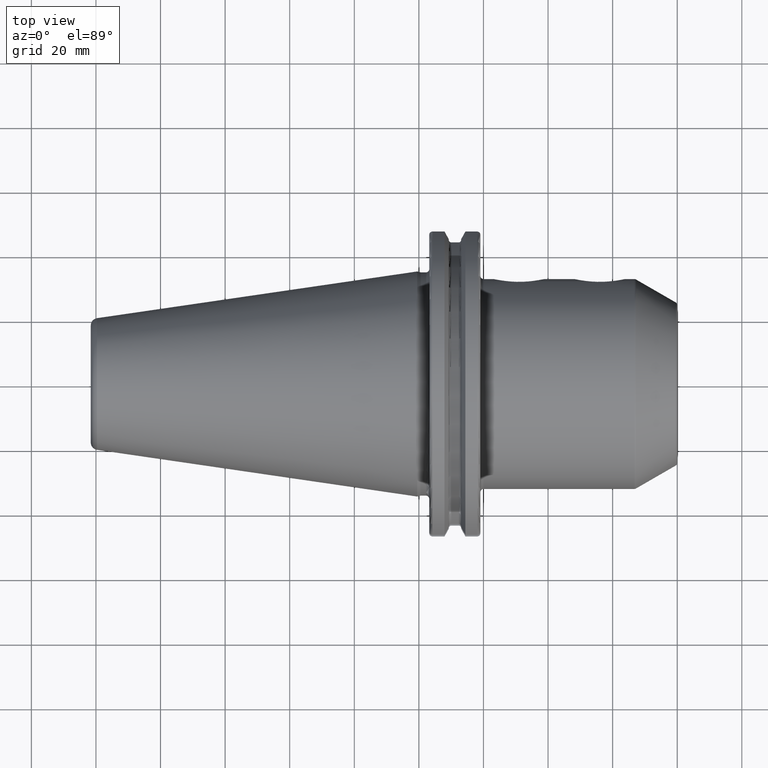
[diagram: clean part render]
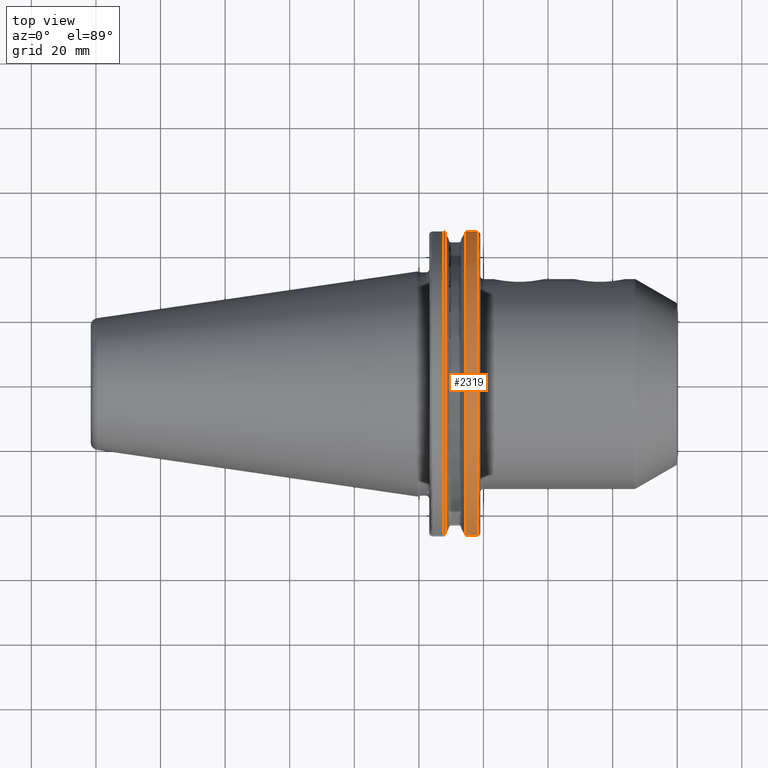
[diagram: same view with one face highlighted and labeled with its STEP entity id]
A machine part, top view. The second image highlights one B-rep face of the part: STEP entity #2319.
In plain terms, the highlighted cylindrical surface (partial cylindrical patch) has radius 48.7375 mm, axis along (1, 0, 0).
Its self-contained STEP definition (entity closure, byte-faithful):
#407=DIRECTION('',(1.E0,0.E0,0.E0));
#408=VECTOR('',#407,3.634621614173E0);
#409=CARTESIAN_POINT('',(1.441537838583E1,4.699929686974E1,1.29E1));
#410=LINE('',#409,#408);
#411=CARTESIAN_POINT('',(1.805E1,0.E0,0.E0));
#412=DIRECTION('',(1.E0,0.E0,0.E0));
#413=DIRECTION('',(0.E0,9.643354064066E-1,2.646832521159E-1));
#414=AXIS2_PLACEMENT_3D('',#411,#412,#413);
#416=DIRECTION('',(1.E0,0.E0,0.E0));
#417=VECTOR('',#416,3.634621614173E0);
#418=CARTESIAN_POINT('',(1.441537838583E1,-4.699929686974E1,1.29E1));
#419=LINE('',#418,#417);
#420=CARTESIAN_POINT('',(1.441537838583E1,0.E0,0.E0));
#421=DIRECTION('',(1.E0,0.E0,0.E0));
#422=DIRECTION('',(0.E0,9.643354064066E-1,2.646832521159E-1));
#423=AXIS2_PLACEMENT_3D('',#420,#421,#422);
#584=CARTESIAN_POINT('',(1.441537838583E1,4.699929686974E1,1.29E1));
#596=CARTESIAN_POINT('',(1.441537838583E1,-4.699929686974E1,1.29E1));
#1618=VERTEX_POINT('',#584);
#1619=VERTEX_POINT('',#596);
#1634=CARTESIAN_POINT('',(1.805E1,4.699929686974E1,1.29E1));
#1635=VERTEX_POINT('',#1634);
#1638=CARTESIAN_POINT('',(1.805E1,-4.699929686974E1,1.29E1));
#1639=VERTEX_POINT('',#1638);
#2307=CARTESIAN_POINT('',(-1.076325E2,0.E0,0.E0));
#2308=DIRECTION('',(1.E0,0.E0,0.E0));
#2309=DIRECTION('',(0.E0,-1.E0,0.E0));
#2310=AXIS2_PLACEMENT_3D('',#2307,#2308,#2309);
#2311=CYLINDRICAL_SURFACE('',#2310,4.87375E1);
#2312=ORIENTED_EDGE('',*,*,#2258,.T.);
#2313=ORIENTED_EDGE('',*,*,#2289,.T.);
#2314=ORIENTED_EDGE('',*,*,#2215,.F.);
#2316=ORIENTED_EDGE('',*,*,#2315,.F.);
#2317=EDGE_LOOP('',(#2312,#2313,#2314,#2316));
#2318=FACE_OUTER_BOUND('',#2317,.F.);
#2319=ADVANCED_FACE('',(#2318),#2311,.T.);
#415=CIRCLE('',#414,4.87375E1);
#424=CIRCLE('',#423,4.87375E1);
#2215=EDGE_CURVE('',#1619,#1639,#419,.T.);
#2258=EDGE_CURVE('',#1618,#1635,#410,.T.);
#2289=EDGE_CURVE('',#1635,#1639,#415,.T.);
#2315=EDGE_CURVE('',#1618,#1619,#424,.T.);